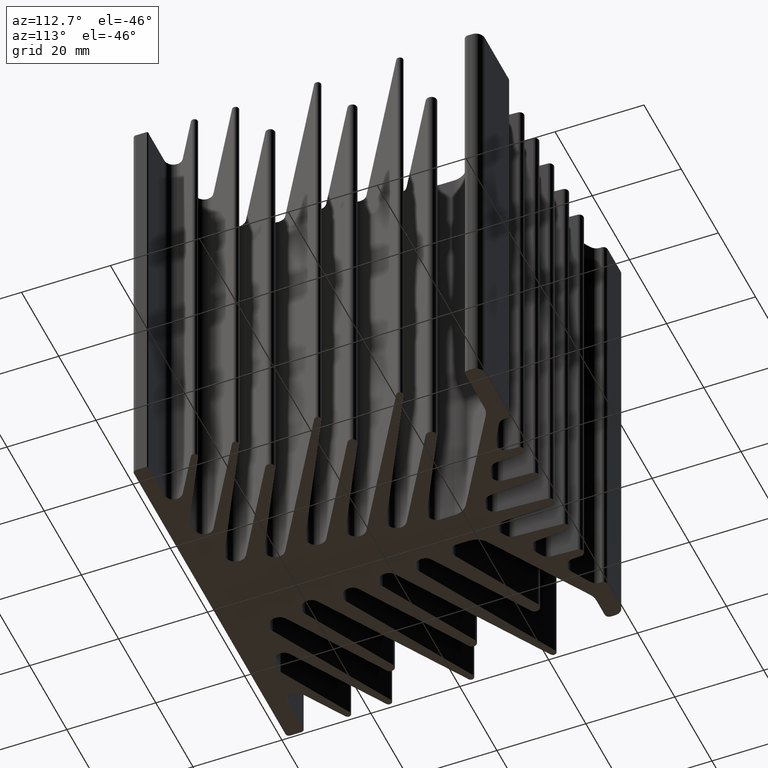
[diagram: clean part render]
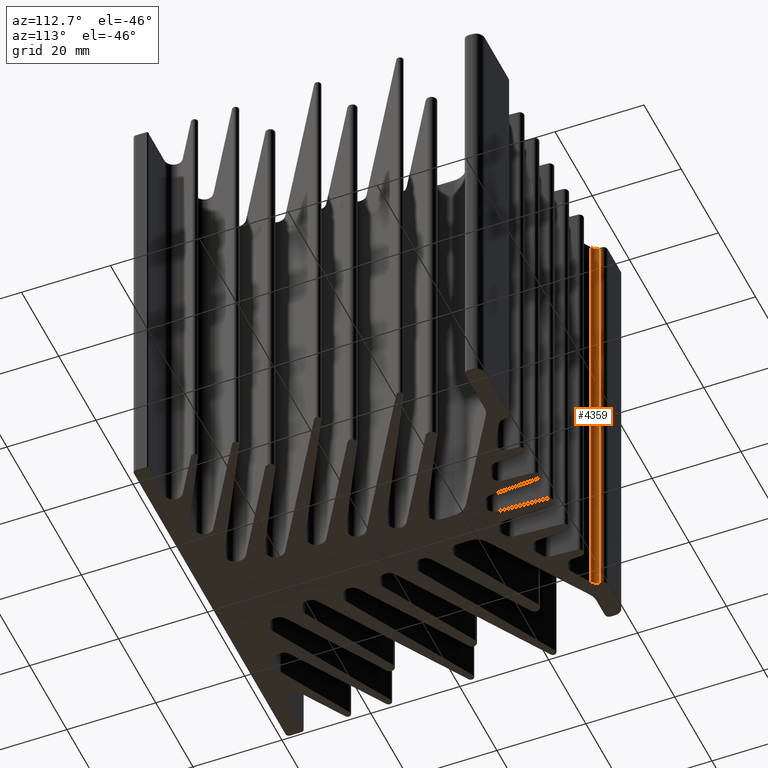
[diagram: same view with one face highlighted and labeled with its STEP entity id]
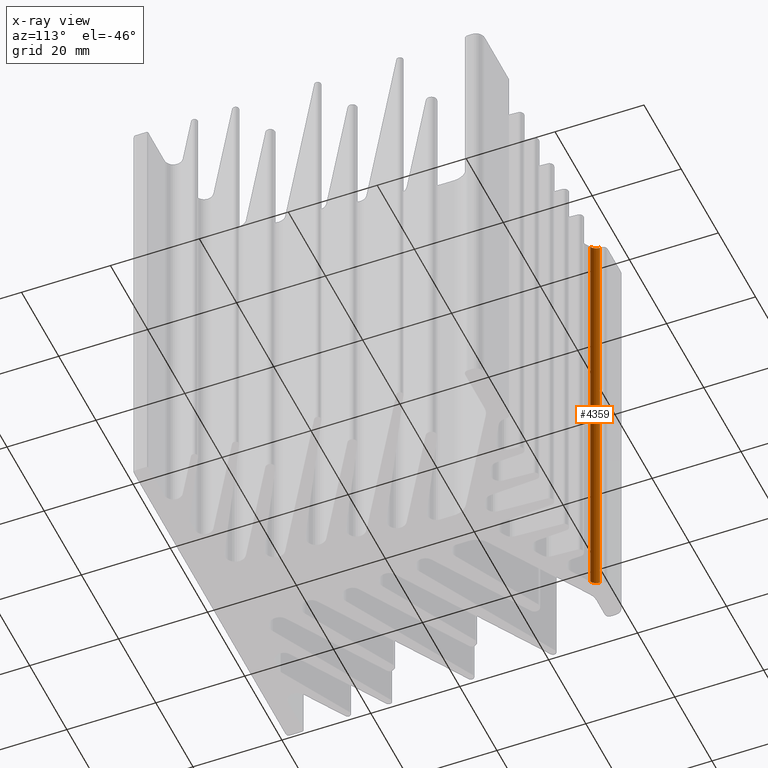
[diagram: x-ray of the same camera — body ghosted, the highlighted face saturated]
A machine part, auxiliary view. The second image highlights one B-rep face of the part: STEP entity #4359.
The next image is the same camera in x-ray: the body ghosted, the highlighted face saturated — about 0% of this face is hidden behind the body in this view.
In plain terms, the highlighted cylindrical surface (edge-blend (fillet) strip) has radius 2 mm, axis along (-0, -0, -1).
Its self-contained STEP definition (entity closure, byte-faithful):
#292 = CARTESIAN_POINT ( 'NONE',  ( -25.60000000000214015, 37.54063682416519754, -50.00000000000000000 ) ) ;
#396 = CIRCLE ( 'NONE', #3310, 2.000000000010562662 ) ;
#430 = EDGE_CURVE ( 'NONE', #3771, #1309, #396, .T. ) ;
#431 = DIRECTION ( 'NONE',  ( -1.000000000000000000, 0.0000000000000000000, 0.0000000000000000000 ) ) ;
#463 = CYLINDRICAL_SURFACE ( 'NONE', #2687, 2.000000000010562662 ) ;
#507 = EDGE_CURVE ( 'NONE', #4171, #3771, #621, .T. ) ;
#532 = ORIENTED_EDGE ( 'NONE', *, *, #2030, .F. ) ;
#535 = CARTESIAN_POINT ( 'NONE',  ( -25.60000000000214015, 37.54063682416519754, 50.00000000000000000 ) ) ;
#545 = DIRECTION ( 'NONE',  ( -0.0000000000000000000, -0.0000000000000000000, -1.000000000000000000 ) ) ;
#621 = LINE ( 'NONE', #3633, #1828 ) ;
#991 = AXIS2_PLACEMENT_3D ( 'NONE', #1493, #1862, #2630 ) ;
#1252 = VERTEX_POINT ( 'NONE', #2040 ) ;
#1309 = VERTEX_POINT ( 'NONE', #292 ) ;
#1493 = CARTESIAN_POINT ( 'NONE',  ( -23.59999999999157794, 37.54063682419123182, 50.00000000000000000 ) ) ;
#1828 = VECTOR ( 'NONE', #4436, 1000.000000000000000 ) ;
#1858 = EDGE_LOOP ( 'NONE', ( #2381, #2532, #532, #3308 ) ) ;
#1862 = DIRECTION ( 'NONE',  ( -0.0000000000000000000, -0.0000000000000000000, -1.000000000000000000 ) ) ;
#2030 = EDGE_CURVE ( 'NONE', #4171, #1252, #2043, .T. ) ;
#2040 = CARTESIAN_POINT ( 'NONE',  ( -25.60000000000214015, 37.54063682416519754, 50.00000000000000000 ) ) ;
#2043 = CIRCLE ( 'NONE', #991, 2.000000000010562662 ) ;
#2381 = ORIENTED_EDGE ( 'NONE', *, *, #430, .T. ) ;
#2382 = DIRECTION ( 'NONE',  ( -0.0000000000000000000, -0.0000000000000000000, -1.000000000000000000 ) ) ;
#2501 = VECTOR ( 'NONE', #545, 1000.000000000000000 ) ;
#2532 = ORIENTED_EDGE ( 'NONE', *, *, #3885, .F. ) ;
#2630 = DIRECTION ( 'NONE',  ( 1.000000000000000000, 0.0000000000000000000, 0.0000000000000000000 ) ) ;
#2687 = AXIS2_PLACEMENT_3D ( 'NONE', #4240, #3875, #431 ) ;
#2770 = CARTESIAN_POINT ( 'NONE',  ( -23.59999999999157794, 37.54063682419123182, -50.00000000000000000 ) ) ;
#3014 = CARTESIAN_POINT ( 'NONE',  ( -24.60000000000032827, 35.80858601661520879, -50.00000000000000000 ) ) ;
#3308 = ORIENTED_EDGE ( 'NONE', *, *, #507, .T. ) ;
#3310 = AXIS2_PLACEMENT_3D ( 'NONE', #2770, #2382, #4601 ) ;
#3399 = FACE_OUTER_BOUND ( 'NONE', #1858, .T. ) ;
#3606 = LINE ( 'NONE', #535, #2501 ) ;
#3633 = CARTESIAN_POINT ( 'NONE',  ( -24.60000000000032827, 35.80858601661520879, 50.00000000000000000 ) ) ;
#3771 = VERTEX_POINT ( 'NONE', #3014 ) ;
#3825 = CARTESIAN_POINT ( 'NONE',  ( -24.60000000000032827, 35.80858601661520879, 50.00000000000000000 ) ) ;
#3875 = DIRECTION ( 'NONE',  ( -0.0000000000000000000, -0.0000000000000000000, -1.000000000000000000 ) ) ;
#3885 = EDGE_CURVE ( 'NONE', #1252, #1309, #3606, .T. ) ;
#4171 = VERTEX_POINT ( 'NONE', #3825 ) ;
#4240 = CARTESIAN_POINT ( 'NONE',  ( -23.59999999999157794, 37.54063682419123182, 50.00000000000000000 ) ) ;
#4359 = ADVANCED_FACE ( 'NONE', ( #3399 ), #463, .F. ) ;
#4436 = DIRECTION ( 'NONE',  ( -0.0000000000000000000, -0.0000000000000000000, -1.000000000000000000 ) ) ;
#4601 = DIRECTION ( 'NONE',  ( 1.000000000000000000, 0.0000000000000000000, 0.0000000000000000000 ) ) ;